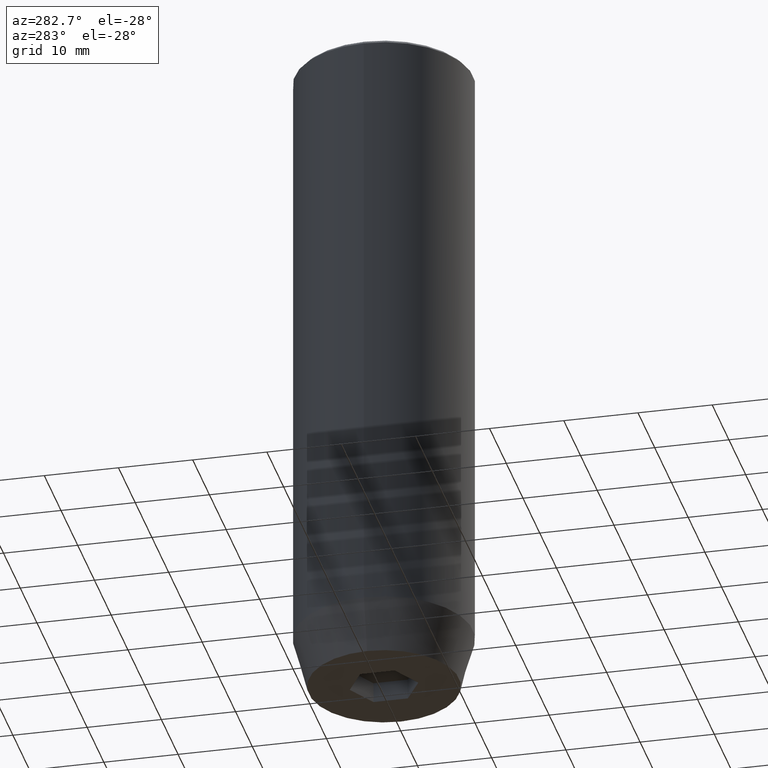
[diagram: clean part render]
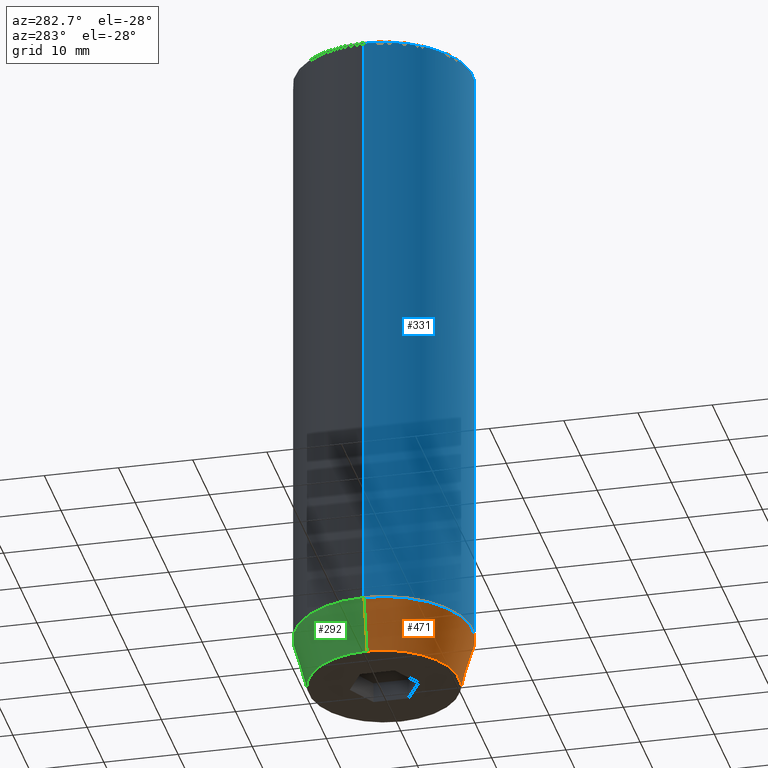
[diagram: same view with three faces highlighted in distinct colors, each labeled with its STEP entity id]
A machine part, auxiliary view with three faces highlighted in distinct colors.
Their STEP definitions:

[orange] entity #471 — the highlighted conical surface has half-angle 15 deg.
#4 = VECTOR ( 'NONE', #300, 1000.000000000000000 ) ;
#28 = CARTESIAN_POINT ( 'NONE',  ( -10.12435565298213547, 1.354726066681111050E-15, -90.00000000000000000 ) ) ;
#31 = ORIENTED_EDGE ( 'NONE', *, *, #381, .T. ) ;
#43 = CIRCLE ( 'NONE', #317, 10.12435565298213547 ) ;
#47 = EDGE_LOOP ( 'NONE', ( #545, #31, #189, #119 ) ) ;
#64 = CARTESIAN_POINT ( 'NONE',  ( -12.00000000000000000, 1.469576158976823947E-15, -82.99999999999998579 ) ) ;
#67 = CARTESIAN_POINT ( 'NONE',  ( 0.000000000000000000, 0.000000000000000000, -90.00000000000000000 ) ) ;
#90 = VERTEX_POINT ( 'NONE', #64 ) ;
#119 = ORIENTED_EDGE ( 'NONE', *, *, #510, .F. ) ;
#127 = CARTESIAN_POINT ( 'NONE',  ( -12.00000000000000000, 1.469576158976823947E-15, -82.99999999999998579 ) ) ;
#129 = CARTESIAN_POINT ( 'NONE',  ( 0.000000000000000000, 0.000000000000000000, -82.99999999999998579 ) ) ;
#133 = DIRECTION ( 'NONE',  ( 1.000000000000000000, 0.000000000000000000, 0.000000000000000000 ) ) ;
#154 = AXIS2_PLACEMENT_3D ( 'NONE', #575, #221, #571 ) ;
#189 = ORIENTED_EDGE ( 'NONE', *, *, #497, .T. ) ;
#191 = VERTEX_POINT ( 'NONE', #28 ) ;
#202 = DIRECTION ( 'NONE',  ( -0.000000000000000000, -0.000000000000000000, 1.000000000000000000 ) ) ;
#214 = CIRCLE ( 'NONE', #154, 12.00000000000000000 ) ;
#221 = DIRECTION ( 'NONE',  ( -0.000000000000000000, -0.000000000000000000, 1.000000000000000000 ) ) ;
#252 = EDGE_CURVE ( 'NONE', #191, #90, #570, .T. ) ;
#255 = CARTESIAN_POINT ( 'NONE',  ( 10.12435565298213547, 0.000000000000000000, -90.00000000000000000 ) ) ;
#300 = DIRECTION ( 'NONE',  ( -0.2588190451025213501, 3.169619151431772337E-17, 0.9659258262890680902 ) ) ;
#305 = DIRECTION ( 'NONE',  ( -0.000000000000000000, -0.000000000000000000, 1.000000000000000000 ) ) ;
#317 = AXIS2_PLACEMENT_3D ( 'NONE', #67, #202, #566 ) ;
#381 = EDGE_CURVE ( 'NONE', #191, #569, #43, .T. ) ;
#406 = CARTESIAN_POINT ( 'NONE',  ( 12.00000000000000000, 0.000000000000000000, -82.99999999999998579 ) ) ;
#407 = VERTEX_POINT ( 'NONE', #512 ) ;
#413 = CONICAL_SURFACE ( 'NONE', #541, 12.00000000000000000, 0.2617993877991500740 ) ;
#442 = DIRECTION ( 'NONE',  ( 0.2588190451025213501, 0.000000000000000000, 0.9659258262890680902 ) ) ;
#468 = VECTOR ( 'NONE', #442, 1000.000000000000000 ) ;
#471 = ADVANCED_FACE ( 'NONE', ( #532 ), #413, .T. ) ;
#484 = LINE ( 'NONE', #406, #468 ) ;
#497 = EDGE_CURVE ( 'NONE', #569, #407, #484, .T. ) ;
#510 = EDGE_CURVE ( 'NONE', #90, #407, #214, .T. ) ;
#512 = CARTESIAN_POINT ( 'NONE',  ( 12.00000000000000000, 0.000000000000000000, -82.99999999999998579 ) ) ;
#532 = FACE_OUTER_BOUND ( 'NONE', #47, .T. ) ;
#541 = AXIS2_PLACEMENT_3D ( 'NONE', #129, #305, #133 ) ;
#545 = ORIENTED_EDGE ( 'NONE', *, *, #252, .F. ) ;
#566 = DIRECTION ( 'NONE',  ( 1.000000000000000000, 0.000000000000000000, 0.000000000000000000 ) ) ;
#569 = VERTEX_POINT ( 'NONE', #255 ) ;
#570 = LINE ( 'NONE', #127, #4 ) ;
#571 = DIRECTION ( 'NONE',  ( 1.000000000000000000, 0.000000000000000000, 0.000000000000000000 ) ) ;
#575 = CARTESIAN_POINT ( 'NONE',  ( 0.000000000000000000, 0.000000000000000000, -82.99999999999998579 ) ) ;

[blue] entity #331 — the highlighted cylindrical surface (partial cylindrical patch) has radius 12 mm, axis along (-0, -0, 1).
#19 = DIRECTION ( 'NONE',  ( -0.000000000000000000, -0.000000000000000000, 1.000000000000000000 ) ) ;
#26 = CARTESIAN_POINT ( 'NONE',  ( 12.00000000000000000, 0.000000000000000000, 0.000000000000000000 ) ) ;
#55 = EDGE_CURVE ( 'NONE', #365, #440, #419, .T. ) ;
#64 = CARTESIAN_POINT ( 'NONE',  ( -12.00000000000000000, 1.469576158976823947E-15, -82.99999999999998579 ) ) ;
#65 = CYLINDRICAL_SURFACE ( 'NONE', #200, 12.00000000000000000 ) ;
#76 = DIRECTION ( 'NONE',  ( 0.000000000000000000, 0.000000000000000000, -1.000000000000000000 ) ) ;
#82 = ORIENTED_EDGE ( 'NONE', *, *, #534, .F. ) ;
#89 = DIRECTION ( 'NONE',  ( -0.000000000000000000, -0.000000000000000000, 1.000000000000000000 ) ) ;
#90 = VERTEX_POINT ( 'NONE', #64 ) ;
#154 = AXIS2_PLACEMENT_3D ( 'NONE', #575, #221, #571 ) ;
#159 = CARTESIAN_POINT ( 'NONE',  ( 0.000000000000000000, 0.000000000000000000, 0.000000000000000000 ) ) ;
#164 = VECTOR ( 'NONE', #206, 1000.000000000000000 ) ;
#200 = AXIS2_PLACEMENT_3D ( 'NONE', #159, #19, #515 ) ;
#206 = DIRECTION ( 'NONE',  ( -0.000000000000000000, -0.000000000000000000, 1.000000000000000000 ) ) ;
#214 = CIRCLE ( 'NONE', #154, 12.00000000000000000 ) ;
#218 = LINE ( 'NONE', #450, #511 ) ;
#221 = DIRECTION ( 'NONE',  ( -0.000000000000000000, -0.000000000000000000, 1.000000000000000000 ) ) ;
#236 = CARTESIAN_POINT ( 'NONE',  ( 0.000000000000000000, 0.000000000000000000, -0.5000000000000056621 ) ) ;
#248 = ORIENTED_EDGE ( 'NONE', *, *, #395, .T. ) ;
#260 = ORIENTED_EDGE ( 'NONE', *, *, #510, .T. ) ;
#331 = ADVANCED_FACE ( 'NONE', ( #561 ), #65, .T. ) ;
#338 = CARTESIAN_POINT ( 'NONE',  ( 12.00000000000000000, 0.000000000000000000, -0.5000000000000056621 ) ) ;
#349 = EDGE_LOOP ( 'NONE', ( #82, #260, #248, #482 ) ) ;
#365 = VERTEX_POINT ( 'NONE', #338 ) ;
#370 = DIRECTION ( 'NONE',  ( 1.000000000000000000, 0.000000000000000000, 0.000000000000000000 ) ) ;
#395 = EDGE_CURVE ( 'NONE', #407, #365, #475, .T. ) ;
#407 = VERTEX_POINT ( 'NONE', #512 ) ;
#419 = CIRCLE ( 'NONE', #494, 12.00000000000000000 ) ;
#422 = CARTESIAN_POINT ( 'NONE',  ( -12.00000000000000000, 1.469576158976823947E-15, -0.5000000000000056621 ) ) ;
#440 = VERTEX_POINT ( 'NONE', #422 ) ;
#450 = CARTESIAN_POINT ( 'NONE',  ( -12.00000000000000000, 1.469576158976823947E-15, 0.000000000000000000 ) ) ;
#475 = LINE ( 'NONE', #26, #164 ) ;
#482 = ORIENTED_EDGE ( 'NONE', *, *, #55, .T. ) ;
#494 = AXIS2_PLACEMENT_3D ( 'NONE', #236, #76, #370 ) ;
#510 = EDGE_CURVE ( 'NONE', #90, #407, #214, .T. ) ;
#511 = VECTOR ( 'NONE', #89, 1000.000000000000000 ) ;
#512 = CARTESIAN_POINT ( 'NONE',  ( 12.00000000000000000, 0.000000000000000000, -82.99999999999998579 ) ) ;
#515 = DIRECTION ( 'NONE',  ( 1.000000000000000000, 0.000000000000000000, 0.000000000000000000 ) ) ;
#534 = EDGE_CURVE ( 'NONE', #90, #440, #218, .T. ) ;
#561 = FACE_OUTER_BOUND ( 'NONE', #349, .T. ) ;
#571 = DIRECTION ( 'NONE',  ( 1.000000000000000000, 0.000000000000000000, 0.000000000000000000 ) ) ;
#575 = CARTESIAN_POINT ( 'NONE',  ( 0.000000000000000000, 0.000000000000000000, -82.99999999999998579 ) ) ;

[green] entity #292 — the highlighted conical surface has half-angle 15 deg.
#4 = VECTOR ( 'NONE', #300, 1000.000000000000000 ) ;
#6 = ORIENTED_EDGE ( 'NONE', *, *, #497, .F. ) ;
#11 = CONICAL_SURFACE ( 'NONE', #476, 12.00000000000000000, 0.2617993877991500740 ) ;
#18 = CIRCLE ( 'NONE', #284, 10.12435565298213547 ) ;
#28 = CARTESIAN_POINT ( 'NONE',  ( -10.12435565298213547, 1.354726066681111050E-15, -90.00000000000000000 ) ) ;
#30 = AXIS2_PLACEMENT_3D ( 'NONE', #285, #470, #517 ) ;
#62 = CIRCLE ( 'NONE', #30, 12.00000000000000000 ) ;
#64 = CARTESIAN_POINT ( 'NONE',  ( -12.00000000000000000, 1.469576158976823947E-15, -82.99999999999998579 ) ) ;
#90 = VERTEX_POINT ( 'NONE', #64 ) ;
#98 = FACE_OUTER_BOUND ( 'NONE', #524, .T. ) ;
#127 = CARTESIAN_POINT ( 'NONE',  ( -12.00000000000000000, 1.469576158976823947E-15, -82.99999999999998579 ) ) ;
#174 = DIRECTION ( 'NONE',  ( 1.000000000000000000, 0.000000000000000000, 0.000000000000000000 ) ) ;
#184 = DIRECTION ( 'NONE',  ( -0.000000000000000000, -0.000000000000000000, 1.000000000000000000 ) ) ;
#191 = VERTEX_POINT ( 'NONE', #28 ) ;
#220 = CARTESIAN_POINT ( 'NONE',  ( 0.000000000000000000, 0.000000000000000000, -90.00000000000000000 ) ) ;
#231 = DIRECTION ( 'NONE',  ( 1.000000000000000000, 0.000000000000000000, 0.000000000000000000 ) ) ;
#252 = EDGE_CURVE ( 'NONE', #191, #90, #570, .T. ) ;
#255 = CARTESIAN_POINT ( 'NONE',  ( 10.12435565298213547, 0.000000000000000000, -90.00000000000000000 ) ) ;
#276 = EDGE_CURVE ( 'NONE', #569, #191, #18, .T. ) ;
#284 = AXIS2_PLACEMENT_3D ( 'NONE', #220, #398, #174 ) ;
#285 = CARTESIAN_POINT ( 'NONE',  ( 0.000000000000000000, 0.000000000000000000, -82.99999999999998579 ) ) ;
#292 = ADVANCED_FACE ( 'NONE', ( #98 ), #11, .T. ) ;
#300 = DIRECTION ( 'NONE',  ( -0.2588190451025213501, 3.169619151431772337E-17, 0.9659258262890680902 ) ) ;
#306 = ORIENTED_EDGE ( 'NONE', *, *, #276, .T. ) ;
#339 = ORIENTED_EDGE ( 'NONE', *, *, #455, .F. ) ;
#398 = DIRECTION ( 'NONE',  ( -0.000000000000000000, -0.000000000000000000, 1.000000000000000000 ) ) ;
#406 = CARTESIAN_POINT ( 'NONE',  ( 12.00000000000000000, 0.000000000000000000, -82.99999999999998579 ) ) ;
#407 = VERTEX_POINT ( 'NONE', #512 ) ;
#442 = DIRECTION ( 'NONE',  ( 0.2588190451025213501, 0.000000000000000000, 0.9659258262890680902 ) ) ;
#452 = CARTESIAN_POINT ( 'NONE',  ( 0.000000000000000000, 0.000000000000000000, -82.99999999999998579 ) ) ;
#455 = EDGE_CURVE ( 'NONE', #407, #90, #62, .T. ) ;
#462 = ORIENTED_EDGE ( 'NONE', *, *, #252, .T. ) ;
#468 = VECTOR ( 'NONE', #442, 1000.000000000000000 ) ;
#470 = DIRECTION ( 'NONE',  ( -0.000000000000000000, -0.000000000000000000, 1.000000000000000000 ) ) ;
#476 = AXIS2_PLACEMENT_3D ( 'NONE', #452, #184, #231 ) ;
#484 = LINE ( 'NONE', #406, #468 ) ;
#497 = EDGE_CURVE ( 'NONE', #569, #407, #484, .T. ) ;
#512 = CARTESIAN_POINT ( 'NONE',  ( 12.00000000000000000, 0.000000000000000000, -82.99999999999998579 ) ) ;
#517 = DIRECTION ( 'NONE',  ( 1.000000000000000000, 0.000000000000000000, 0.000000000000000000 ) ) ;
#524 = EDGE_LOOP ( 'NONE', ( #306, #462, #339, #6 ) ) ;
#569 = VERTEX_POINT ( 'NONE', #255 ) ;
#570 = LINE ( 'NONE', #127, #4 ) ;